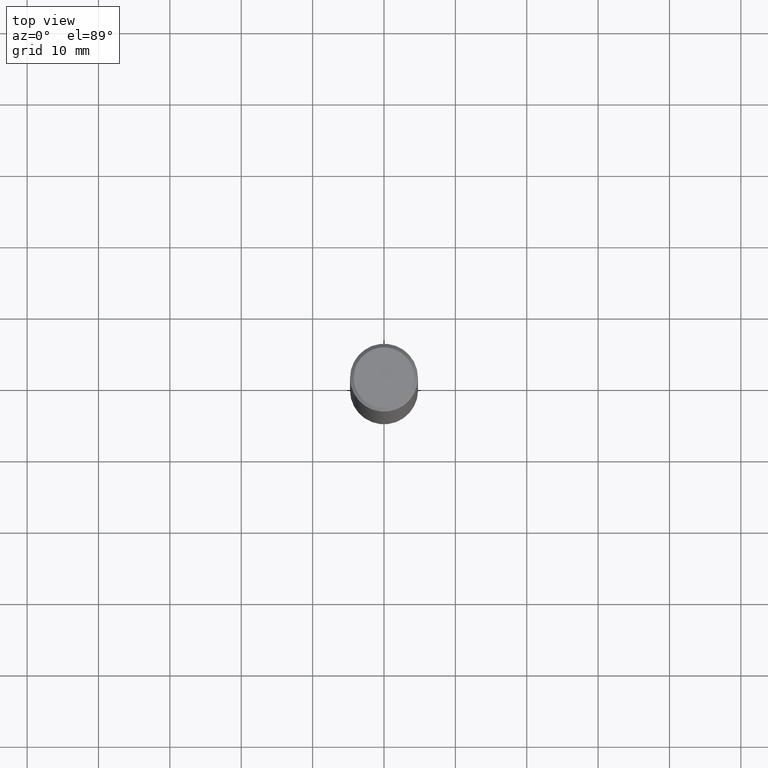
[diagram: clean part render]
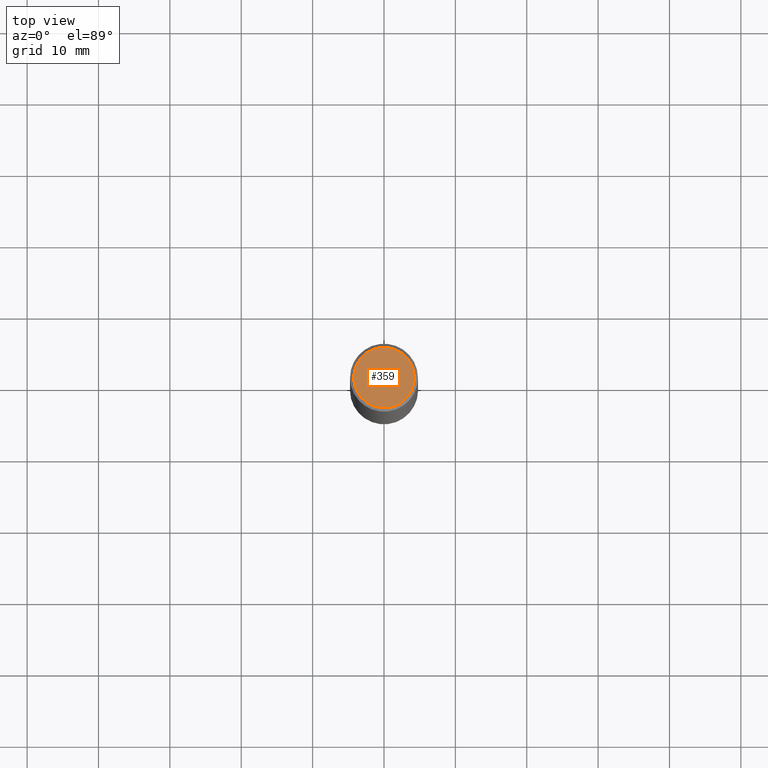
[diagram: same view with one face highlighted and labeled with its STEP entity id]
A machine part, top view. The second image highlights one B-rep face of the part: STEP entity #359.
In plain terms, the highlighted planar face has unit normal (0, -0, -1).
Its self-contained STEP definition (entity closure, byte-faithful):
#1 = ORIENTED_EDGE ( 'NONE', *, *, #68, .T. ) ;
#10 = DIRECTION ( 'NONE',  ( -2.445468806185136597E-29, 3.491481338843145583E-15, 1.000000000000000000 ) ) ;
#19 = CARTESIAN_POINT ( 'NONE',  ( 0.000000000000000000, 0.000000000000000000, 0.000000000000000000 ) ) ;
#31 = VERTEX_POINT ( 'NONE', #278 ) ;
#41 = CARTESIAN_POINT ( 'NONE',  ( 0.000000000000000000, 0.000000000000000000, 0.000000000000000000 ) ) ;
#53 = CARTESIAN_POINT ( 'NONE',  ( 1.169646248512447426E-15, 0.1674999999999996769, -5.848231242562257836E-16 ) ) ;
#68 = EDGE_CURVE ( 'NONE', #184, #31, #211, .T. ) ;
#75 = FACE_OUTER_BOUND ( 'NONE', #217, .T. ) ;
#78 = DIRECTION ( 'NONE',  ( -1.000000000000000000, 6.982962677686265922E-15, -4.876176775795935793E-29 ) ) ;
#80 = PLANE ( 'NONE',  #212 ) ;
#92 = DIRECTION ( 'NONE',  ( 1.000000000000000000, -6.982962677686266711E-15, 4.876176775795936353E-29 ) ) ;
#141 = CARTESIAN_POINT ( 'NONE',  ( -0.1674999999999996769, 1.204561061900878483E-15, -8.301862719484096375E-30 ) ) ;
#144 = EDGE_CURVE ( 'NONE', #31, #184, #261, .T. ) ;
#147 = AXIS2_PLACEMENT_3D ( 'NONE', #41, #10, #92 ) ;
#184 = VERTEX_POINT ( 'NONE', #141 ) ;
#211 = CIRCLE ( 'NONE', #246, 0.1674999999999996769 ) ;
#212 = AXIS2_PLACEMENT_3D ( 'NONE', #53, #247, #78 ) ;
#217 = EDGE_LOOP ( 'NONE', ( #1, #306 ) ) ;
#237 = DIRECTION ( 'NONE',  ( -2.445468806185136597E-29, 3.491481338843145583E-15, 1.000000000000000000 ) ) ;
#246 = AXIS2_PLACEMENT_3D ( 'NONE', #19, #237, #263 ) ;
#247 = DIRECTION ( 'NONE',  ( 2.438088387897960049E-29, -3.491481338843145188E-15, -1.000000000000000000 ) ) ;
#261 = CIRCLE ( 'NONE', #147, 0.1674999999999996769 ) ;
#263 = DIRECTION ( 'NONE',  ( 1.000000000000000000, -6.982962677686266711E-15, 4.876176775795936353E-29 ) ) ;
#278 = CARTESIAN_POINT ( 'NONE',  ( 0.1674999999999996769, -1.252653207992876119E-15, 8.469775550109225372E-30 ) ) ;
#306 = ORIENTED_EDGE ( 'NONE', *, *, #144, .T. ) ;
#359 = ADVANCED_FACE ( 'NONE', ( #75 ), #80, .F. ) ;